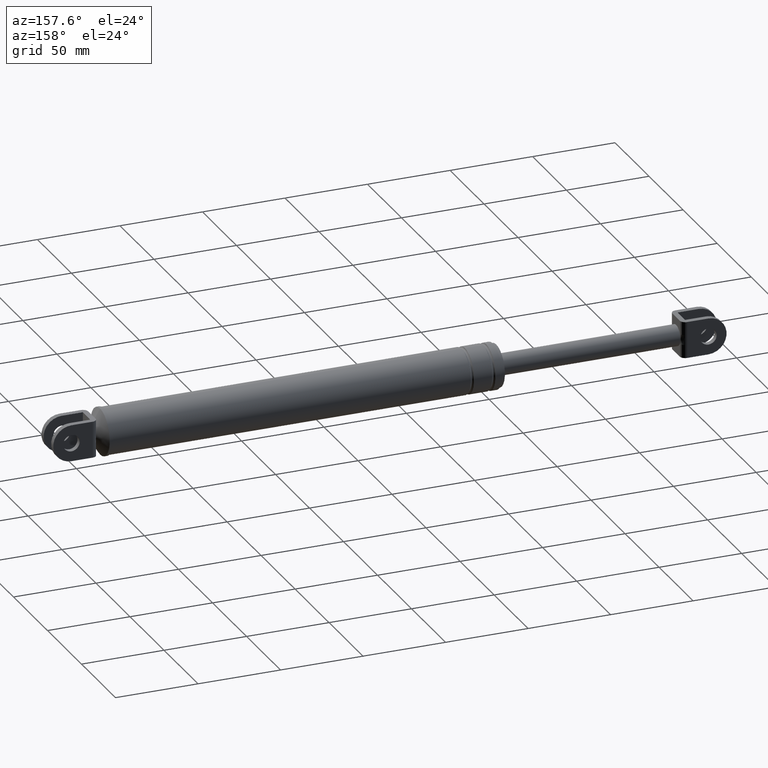
[diagram: clean part render]
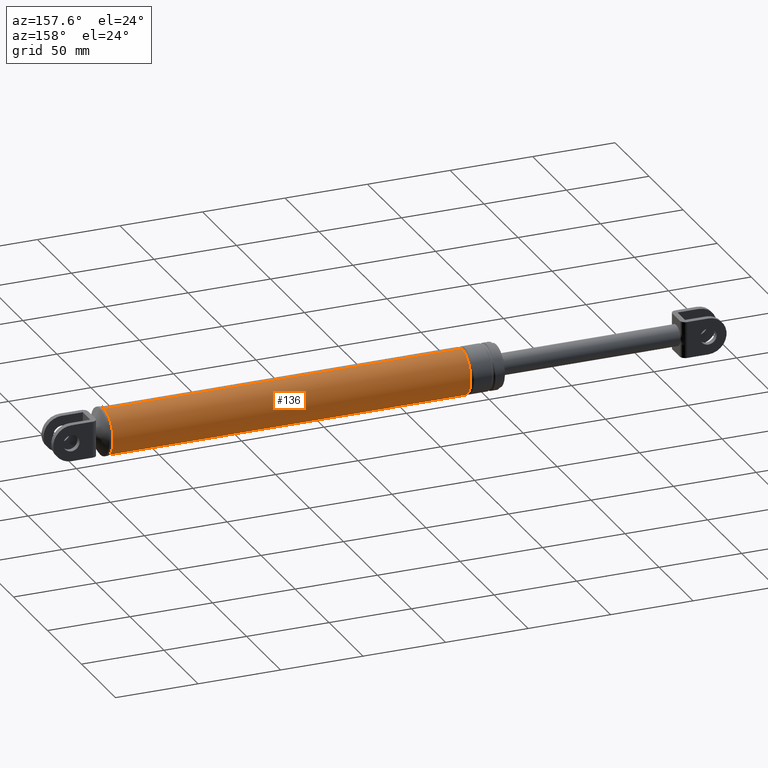
[diagram: same view with one face highlighted and labeled with its STEP entity id]
A machine part, auxiliary view. The second image highlights one B-rep face of the part: STEP entity #136.
In plain terms, the highlighted cylindrical surface (edge-blend (fillet) strip) has radius 13.7 mm, axis along (-1, 0, 0).
Its self-contained STEP definition (entity closure, byte-faithful):
#136=ADVANCED_FACE('',(#423),#422,.T.);
#422=CYLINDRICAL_SURFACE('',#1375,1.37000000000E+001);
#423=FACE_OUTER_BOUND('',#1376,.T.);
#1372=CARTESIAN_POINT('',(1.56659735358E+002,-1.17412024792E-013,1.79725493158E+002));
#1373=DIRECTION('',(-1.00000000000E+000,0.00000000000E+000,-0.00000000000E+000));
#1374=DIRECTION('',(0.00000000000E+000,-8.57022078772E-015,1.00000000000E+000));
#1375=AXIS2_PLACEMENT_3D('',#1372,#1373,#1374);
#1376=EDGE_LOOP('',(#2053,#2054,#2055,#2056));
#2053=ORIENTED_EDGE('',*,*,#2311,.F.);
#2054=ORIENTED_EDGE('',*,*,#2312,.F.);
#2055=ORIENTED_EDGE('',*,*,#2251,.T.);
#2056=ORIENTED_EDGE('',*,*,#2313,.T.);
#2251=EDGE_CURVE('',#2467,#2468,#2469,.T.);
#2311=EDGE_CURVE('',#2867,#2868,#2869,.T.);
#2312=EDGE_CURVE('',#2467,#2867,#2875,.T.);
#2313=EDGE_CURVE('',#2468,#2868,#2881,.T.);
#2467=VERTEX_POINT('',#3477);
#2468=VERTEX_POINT('',#3478);
#2469=CIRCLE('',#3482,1.37000000000E+001);
#2867=VERTEX_POINT('',#3739);
#2868=VERTEX_POINT('',#3740);
#2869=CIRCLE('',#3744,1.37000000000E+001);
#2875=(BOUNDED_CURVE() B_SPLINE_CURVE(1,(#3745,#3746),.UNSPECIFIED.,.F.,.F.) B_SPLINE_CURVE_WITH_KNOTS((2,2),(4.21940928327E-002,9.57805907297E-001),.UNSPECIFIED.) CURVE() GEOMETRIC_REPRESENTATION_ITEM() RATIONAL_B_SPLINE_CURVE((1.00000000000E+000,1.00000000000E+000)) REPRESENTATION_ITEM('') );
#2881=(BOUNDED_CURVE() B_SPLINE_CURVE(1,(#3747,#3748),.UNSPECIFIED.,.F.,.F.) B_SPLINE_CURVE_WITH_KNOTS((2,2),(4.21940928270E-002,9.57805907173E-001),.UNSPECIFIED.) CURVE() GEOMETRIC_REPRESENTATION_ITEM() RATIONAL_B_SPLINE_CURVE((7.50000000000E-001,7.50000000000E-001)) REPRESENTATION_ITEM('') );
#3477=CARTESIAN_POINT('',(3.83659735358E+002,-1.71714494475E-013,1.93425493158E+002));
#3478=CARTESIAN_POINT('',(3.83659735358E+002,3.05618015870E-015,1.66025493158E+002));
#3479=CARTESIAN_POINT('',(3.83659735358E+002,-8.83679421621E-014,1.79725493158E+002));
#3480=DIRECTION('',(-1.00000000000E+000,-1.46694769862E-015,9.28248434523E-030));
#3481=DIRECTION('',(-1.82407580425E-029,6.10674375483E-015,-1.00000000000E+000));
#3482=AXIS2_PLACEMENT_3D('',#3479,#3480,#3481);
#3739=CARTESIAN_POINT('',(1.66659735358E+002,-1.71714494475E-013,1.93425493158E+002));
#3740=CARTESIAN_POINT('',(1.66659735358E+002,3.05618015870E-015,1.66025493158E+002));
#3741=CARTESIAN_POINT('',(1.66659735358E+002,-8.83679421621E-014,1.79725493158E+002));
#3742=DIRECTION('',(-1.00000000000E+000,7.33473849312E-016,-4.64124217261E-030));
#3743=DIRECTION('',(9.12037902123E-030,6.10674375483E-015,-1.00000000000E+000));
#3744=AXIS2_PLACEMENT_3D('',#3741,#3742,#3743);
#3745=CARTESIAN_POINT('',(3.83659735357E+002,-2.34824049583E-013,1.93425493158E+002));
#3746=CARTESIAN_POINT('',(1.66659735329E+002,-2.34824049583E-013,1.93425493158E+002));
#3747=CARTESIAN_POINT('',(3.83659735358E+002,-5.92118946467E-016,1.66025493158E+002));
#3748=CARTESIAN_POINT('',(1.66659735358E+002,-5.92118946467E-016,1.66025493158E+002));